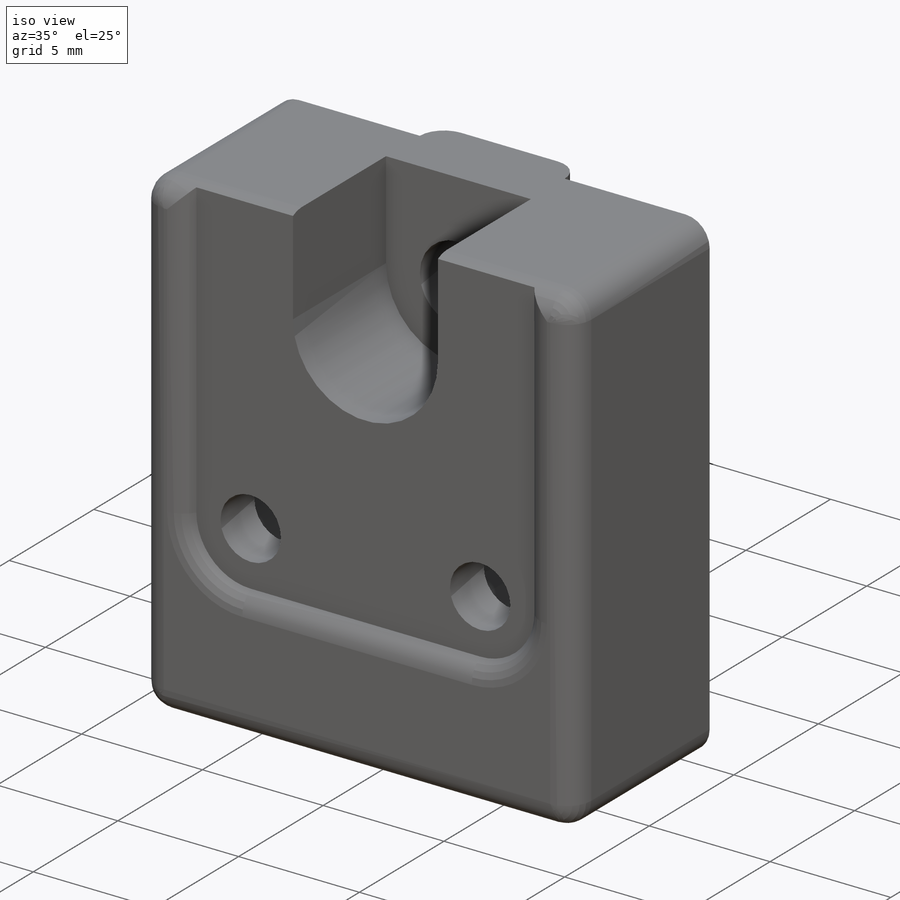
[diagram: iso view]
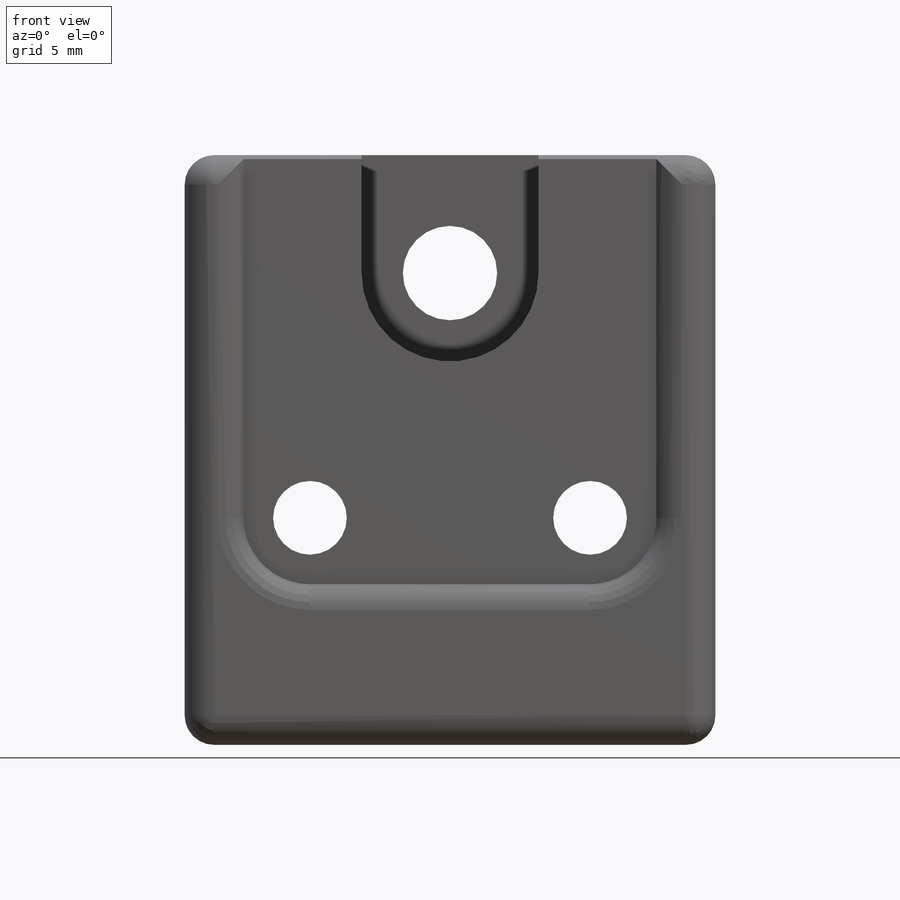
[diagram: front view]
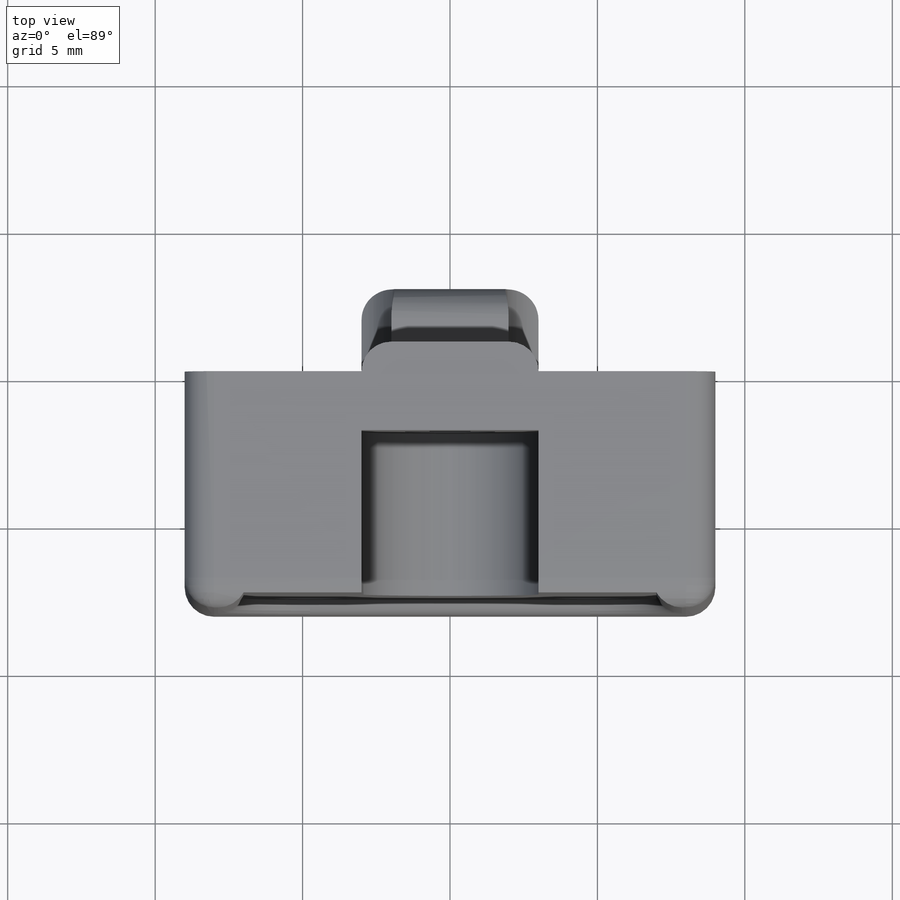
[diagram: top view]
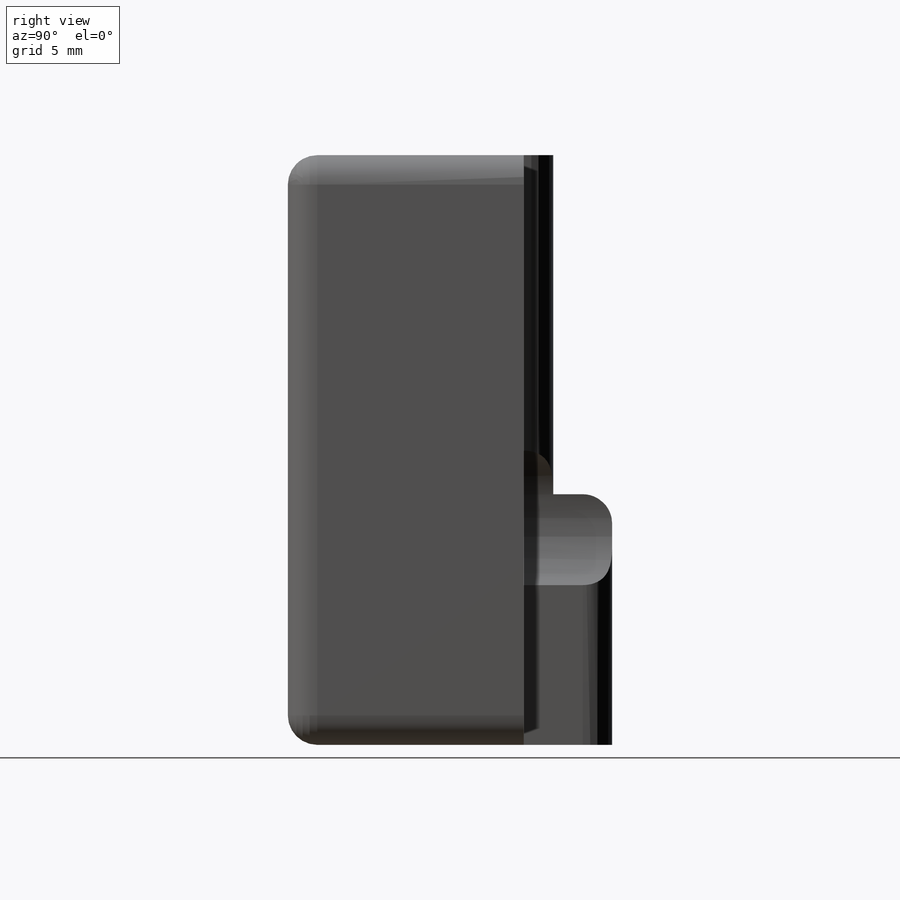
[diagram: right view]
SOLIDWORKS PART (.sldprt)
format: sldprt  version: not decoded by parser v0  size: 299,520 bytes
history: native  units: mm
features: sketch x6, cut_extrude x4, extrude x2, material x1, fillet x1 (+13 scaffold rows collapsed)
feature tree (27):
  scaffold x13  (default folders/planes/origin — collapsed)
  material  "Material <not specified>"
  sketch  "Sketch1"  dims[c1.D4=3.2mm c1.D3=3.2mm c1.D5=2.5mm c1.D6=2.5mm c1.D7=2.5mm c1.D1=18.0mm c1.D2=20.0mm c2.D3=4.0mm c2.D6=9.5mm c2.D7=7.7mm]
  extrude  "Boss-Extrude1"  Depth=8mm
  sketch  "Sketch2"  dims[D1=6.0mm]
  cut_extrude  "Cut-Extrude1"  Depth=2mm
  sketch  "Sketch6"  dims[D1=6.0mm]
  extrude  "Boss-Extrude4"  Depth=3mm
  sketch  "Sketch7"  dims[D1=15.0mm]
  cut_extrude  "Cut-Extrude2"  Depth=2mm
  sketch  "Sketch9"  dims[D1=1.0mm D2=1.0mm]
  cut_extrude  "Cut-Extrude3"  Depth=0.5mm
  sketch  "Sketch10"  dims[D1=5.0mm]
  cut_extrude  "Cut-Extrude4"  Depth=2mm
  fillet  "Fillet1"  Radius=1mm
decode coverage: 13 of 13 modeling features carry decoded parameters
note: suppression state not decoded; provenance and decode notes live in map.json
